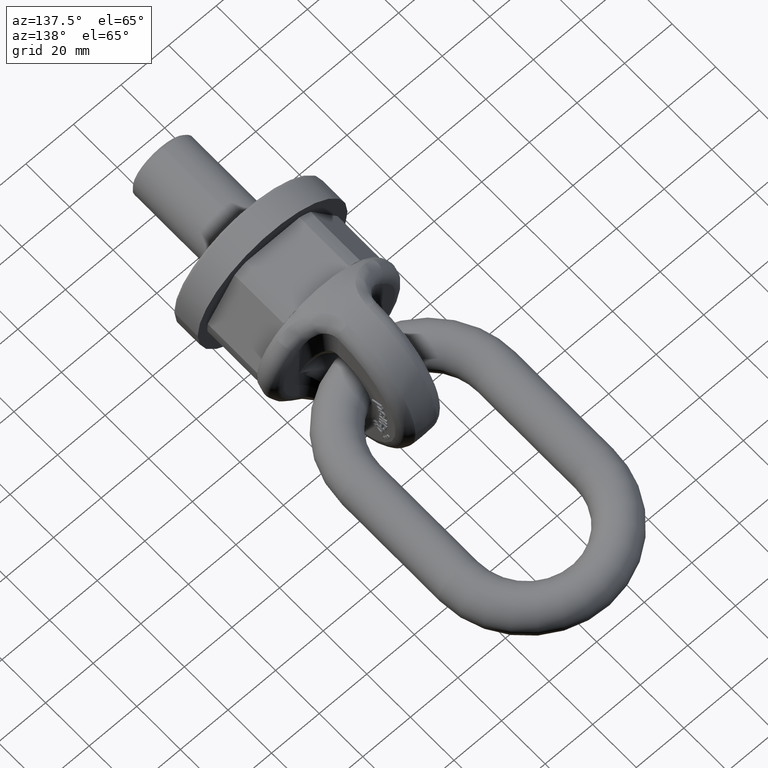
[diagram: clean part render]
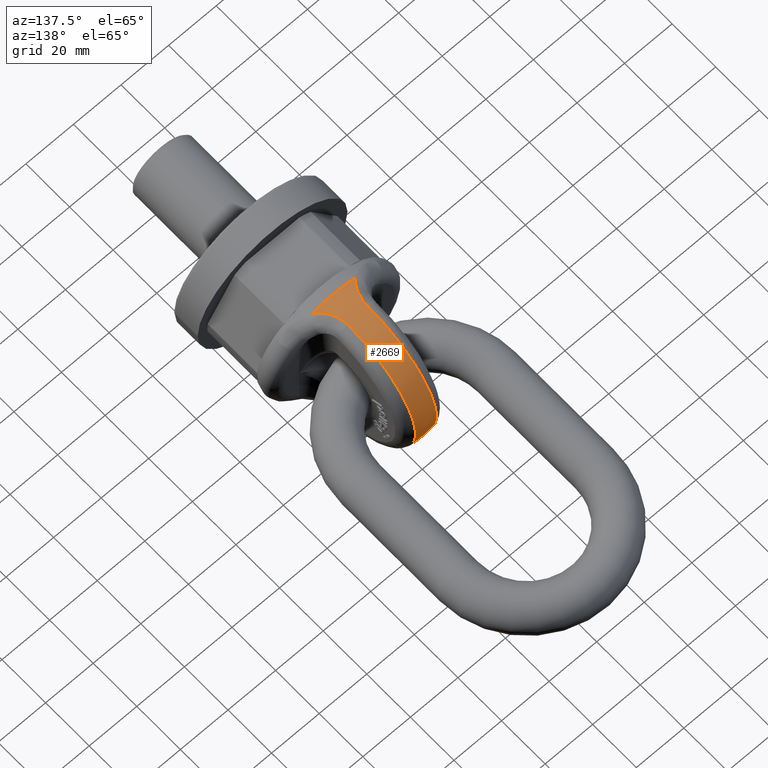
[diagram: same view with one face highlighted and labeled with its STEP entity id]
A machine part, auxiliary view. The second image highlights one B-rep face of the part: STEP entity #2669.
In plain terms, the highlighted spherical surface has radius 31.5 mm.
Its self-contained STEP definition (entity closure, byte-faithful):
#315=SPHERICAL_SURFACE('',#5656,31.5);
#357=B_SPLINE_CURVE_WITH_KNOTS('',3,(#7021,#7022,#7023,#7024,#7025,#7026),
 .UNSPECIFIED.,.F.,.F.,(4,2,4),(0.,0.5,1.),.UNSPECIFIED.);
#358=B_SPLINE_CURVE_WITH_KNOTS('',3,(#7030,#7031,#7032,#7033,#7034,#7035),
 .UNSPECIFIED.,.F.,.F.,(4,2,4),(0.,0.5,1.),.UNSPECIFIED.);
#359=B_SPLINE_CURVE_WITH_KNOTS('',3,(#7039,#7040,#7041,#7042,#7043,#7044),
 .UNSPECIFIED.,.F.,.F.,(4,2,4),(0.,0.5,1.),.UNSPECIFIED.);
#360=B_SPLINE_CURVE_WITH_KNOTS('',3,(#7048,#7049,#7050,#7051,#7052,#7053),
 .UNSPECIFIED.,.F.,.F.,(4,2,4),(0.,0.5,1.),.UNSPECIFIED.);
#1822=FACE_OUTER_BOUND('',#3104,.T.);
#2669=ADVANCED_FACE('',(#1822),#315,.T.);
#3104=EDGE_LOOP('',(#3521,#3522,#3523,#3524,#3525,#3526,#3527,#3528));
#3521=ORIENTED_EDGE('',*,*,#5066,.F.);
#3522=ORIENTED_EDGE('',*,*,#5067,.T.);
#3523=ORIENTED_EDGE('',*,*,#5068,.T.);
#3524=ORIENTED_EDGE('',*,*,#5069,.T.);
#3525=ORIENTED_EDGE('',*,*,#5070,.F.);
#3526=ORIENTED_EDGE('',*,*,#5071,.T.);
#3527=ORIENTED_EDGE('',*,*,#5072,.T.);
#3528=ORIENTED_EDGE('',*,*,#5073,.T.);
#4653=VERTEX_POINT('',#7019);
#4654=VERTEX_POINT('',#7020);
#4655=VERTEX_POINT('',#7027);
#4656=VERTEX_POINT('',#7029);
#4657=VERTEX_POINT('',#7036);
#4658=VERTEX_POINT('',#7038);
#4659=VERTEX_POINT('',#7045);
#4660=VERTEX_POINT('',#7047);
#5066=EDGE_CURVE('',#4653,#4654,#5561,.T.);
#5067=EDGE_CURVE('',#4653,#4655,#357,.T.);
#5068=EDGE_CURVE('',#4655,#4656,#5562,.T.);
#5069=EDGE_CURVE('',#4656,#4657,#358,.T.);
#5070=EDGE_CURVE('',#4658,#4657,#5563,.T.);
#5071=EDGE_CURVE('',#4658,#4659,#359,.T.);
#5072=EDGE_CURVE('',#4659,#4660,#5564,.T.);
#5073=EDGE_CURVE('',#4660,#4654,#360,.T.);
#5561=CIRCLE('',#5652,29.4392221405665);
#5562=CIRCLE('',#5653,31.188939297323);
#5563=CIRCLE('',#5654,29.4392221405665);
#5564=CIRCLE('',#5655,31.188939297323);
#5652=AXIS2_PLACEMENT_3D('',#7018,#5967,#5968);
#5653=AXIS2_PLACEMENT_3D('',#7028,#5969,#5970);
#5654=AXIS2_PLACEMENT_3D('',#7037,#5971,#5972);
#5655=AXIS2_PLACEMENT_3D('',#7046,#5973,#5974);
#5656=AXIS2_PLACEMENT_3D('',#7054,#5975,#5976);
#5967=DIRECTION('',(0.,-1.,0.));
#5968=DIRECTION('',(0.,0.,-1.));
#5969=DIRECTION('',(1.,3.03576608295941E-16,2.34291072916505E-15));
#5970=DIRECTION('',(3.05909060481944E-16,-1.,6.91604647772953E-31));
#5971=DIRECTION('',(0.,-1.,0.));
#5972=DIRECTION('',(0.,0.,-1.));
#5973=DIRECTION('',(-1.,3.03576608295941E-16,0.));
#5974=DIRECTION('',(-3.05909060481944E-16,-1.,0.));
#5975=DIRECTION('',(6.12323399573677E-17,-1.,0.));
#5976=DIRECTION('',(1.,0.,0.));
#7018=CARTESIAN_POINT('',(0.,39.2936535945751,0.));
#7019=CARTESIAN_POINT('',(-9.1621136409193,39.2936535945751,-27.9771956041434));
#7020=CARTESIAN_POINT('',(9.16211364091934,39.2936535945751,-27.9771956041434));
#7021=CARTESIAN_POINT('',(-9.16211364091929,39.2936535945751,-27.9771956041434));
#7022=CARTESIAN_POINT('',(-7.77353507639356,40.638892343862,-28.9707736032879));
#7023=CARTESIAN_POINT('',(-6.56660956113291,42.322812002598,-29.7816653667164));
#7024=CARTESIAN_POINT('',(-4.8875529109417,46.155629305019,-30.8896847911342));
#7025=CARTESIAN_POINT('',(-4.41588785046721,48.3063805036106,-31.188939297323));
#7026=CARTESIAN_POINT('',(-4.41588785046721,50.5,-31.188939297323));
#7027=CARTESIAN_POINT('',(-4.41588785046721,50.5,-31.188939297323));
#7028=CARTESIAN_POINT('',(-4.41588785046729,50.5,-1.03460310236494E-14));
#7029=CARTESIAN_POINT('',(-4.41588785046736,50.5,31.1889392973229));
#7030=CARTESIAN_POINT('',(-4.41588785046736,50.5,31.1889392973229));
#7031=CARTESIAN_POINT('',(-4.41588785046736,48.3041034149694,31.1889392973229));
#7032=CARTESIAN_POINT('',(-4.89286757863872,46.1411705417204,30.886211336712));
#7033=CARTESIAN_POINT('',(-6.5669175223113,42.3244437071946,29.7814283015914));
#7034=CARTESIAN_POINT('',(-7.77394866749056,40.6384916616218,28.9704776639547));
#7035=CARTESIAN_POINT('',(-9.1621136409194,39.2936535945751,27.9771956041434));
#7036=CARTESIAN_POINT('',(-9.1621136409194,39.2936535945751,27.9771956041434));
#7037=CARTESIAN_POINT('',(0.,39.2936535945751,0.));
#7038=CARTESIAN_POINT('',(9.16211364091937,39.2936535945751,27.9771956041434));
#7039=CARTESIAN_POINT('',(9.16211364091936,39.2936535945751,27.9771956041434));
#7040=CARTESIAN_POINT('',(7.77353507639363,40.638892343862,28.9707736032879));
#7041=CARTESIAN_POINT('',(6.56660956113298,42.322812002598,29.7816653667164));
#7042=CARTESIAN_POINT('',(4.88755291094177,46.155629305019,30.8896847911342));
#7043=CARTESIAN_POINT('',(4.41588785046728,48.3063805036106,31.188939297323));
#7044=CARTESIAN_POINT('',(4.41588785046728,50.5,31.188939297323));
#7045=CARTESIAN_POINT('',(4.41588785046729,50.5,31.188939297323));
#7046=CARTESIAN_POINT('',(4.41588785046729,50.5,0.));
#7047=CARTESIAN_POINT('',(4.41588785046729,50.5,-31.188939297323));
#7048=CARTESIAN_POINT('',(4.41588785046728,50.5,-31.188939297323));
#7049=CARTESIAN_POINT('',(4.41588785046728,48.3041034149694,-31.1889392973229));
#7050=CARTESIAN_POINT('',(4.89286757863865,46.1411705417204,-30.886211336712));
#7051=CARTESIAN_POINT('',(6.56691752231123,42.3244437071946,-29.7814283015914));
#7052=CARTESIAN_POINT('',(7.77394866749049,40.6384916616218,-28.9704776639547));
#7053=CARTESIAN_POINT('',(9.16211364091934,39.2936535945751,-27.9771956041434));
#7054=CARTESIAN_POINT('',(0.,50.5,0.));